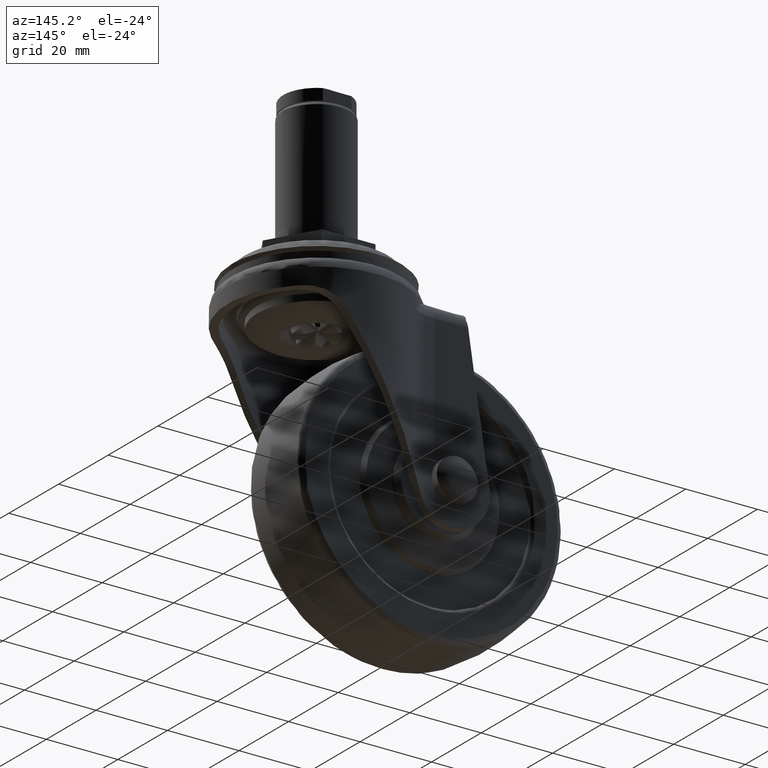
[diagram: clean part render]
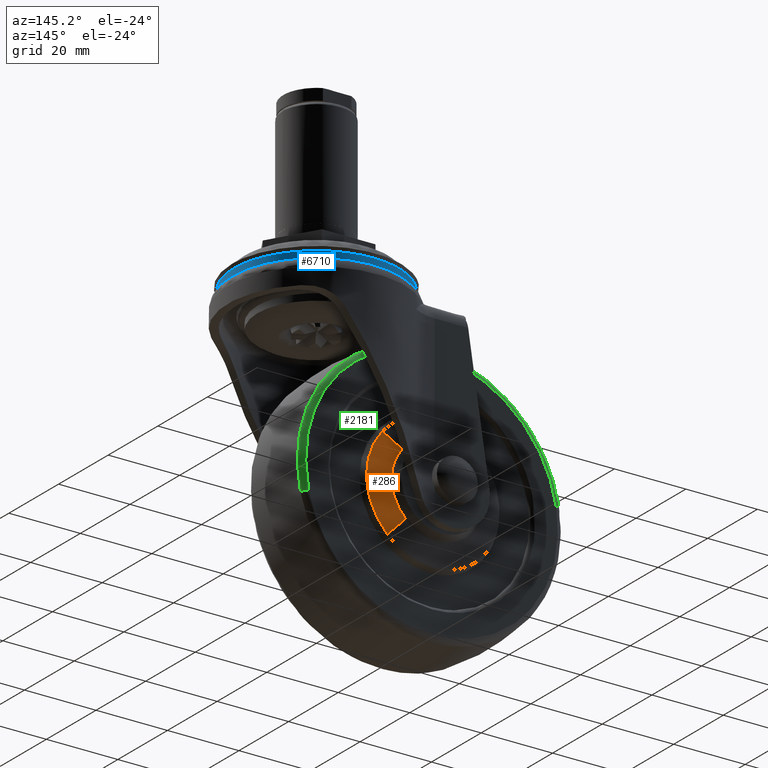
[diagram: same view with three faces highlighted in distinct colors, each labeled with its STEP entity id]
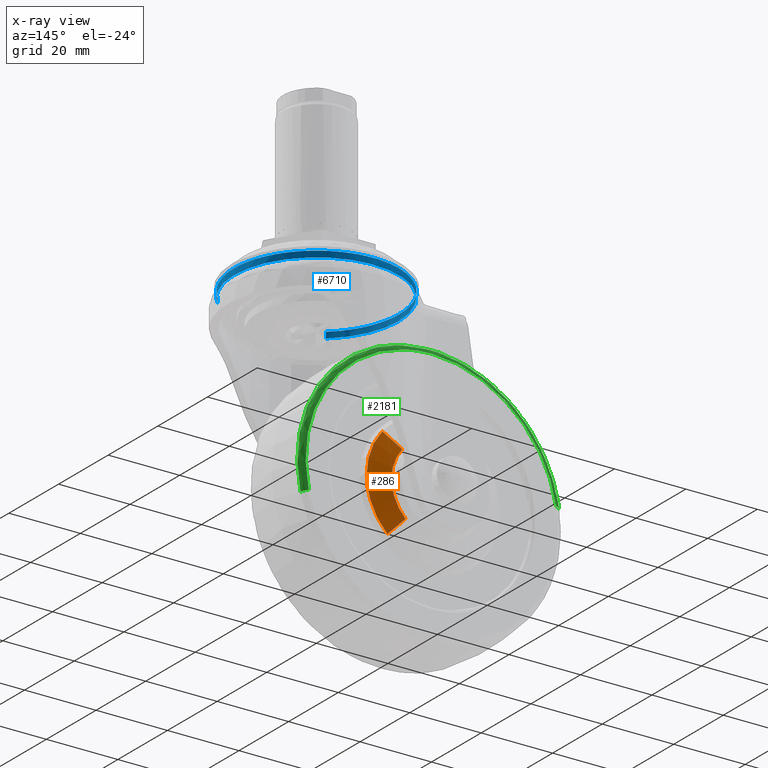
[diagram: x-ray of the same camera — body ghosted, the three highlighted faces saturated]
A machine part, auxiliary view with three faces highlighted in distinct colors.
The next image is the same camera in x-ray (body ghosted, the three faces saturated) — at least one of them is partly hidden behind the body in this view.
Their STEP definitions:

[orange] entity #286 — the highlighted face is a freeform B-spline surface patch.
#70=CARTESIAN_POINT('',(-15.360513245780989,12.469561828281330,-49.348173803471440));
#71=VERTEX_POINT('',#70);
#126=CARTESIAN_POINT('',(-16.309885233722969,12.469561063073030,-66.657796227111035));
#127=VERTEX_POINT('',#126);
#139=CARTESIAN_POINT('',(-12.201779515133881,11.010146419921080,-70.986836385914472));
#140=VERTEX_POINT('',#139);
#141=CARTESIAN_POINT('',(-16.309885233722969,12.469561063073030,-66.657796227111035));
#142=CARTESIAN_POINT('',(-12.201779515133881,11.010146419921080,-70.986836385914472));
#143=QUASI_UNIFORM_CURVE('',1,(#141,#142),.UNSPECIFIED.,.F.,.U.);
#144=EDGE_CURVE('',#127,#140,#143,.T.);
#203=CARTESIAN_POINT('',(-10.803603628256790,11.010146209847541,-45.494377231858323));
#204=VERTEX_POINT('',#203);
#216=CARTESIAN_POINT('',(-15.360513245780989,12.469561828281330,-49.348173803471440));
#217=CARTESIAN_POINT('',(-10.803603628256790,11.010146209847541,-45.494377231858323));
#218=QUASI_UNIFORM_CURVE('',1,(#216,#217),.UNSPECIFIED.,.F.,.U.);
#219=EDGE_CURVE('',#71,#204,#218,.T.);
#224=CARTESIAN_POINT('',(-16.412587517168230,12.506046367146620,-66.549570601997857));
#225=CARTESIAN_POINT('',(-7.866902248768105,12.506046367146622,-58.440018083988804));
#226=CARTESIAN_POINT('',(-15.474433538971999,12.506046367146617,-49.444516629513544));
#227=CARTESIAN_POINT('',(-12.096508686655810,10.972748812809961,-71.097768692737745));
#228=CARTESIAN_POINT('',(0.744283094084672,10.972748812809956,-58.912312284251371));
#229=CARTESIAN_POINT('',(-10.686833568285049,10.972748812809954,-45.395624328589037));
#237=(BOUNDED_SURFACE()B_SPLINE_SURFACE(2,1,((#224,#227),(#225,#228),(#226,#229)),.UNSPECIFIED.,.F.,.F.,.U.)B_SPLINE_SURFACE_WITH_KNOTS((3,3),(2,2),(0.0,29.807898895841220),(0.0,6.454893007164583),.UNSPECIFIED.)GEOMETRIC_REPRESENTATION_ITEM()RATIONAL_B_SPLINE_SURFACE(((1.0,1.0),(0.718822509939086,0.718822509939086),(0.977505800795127,0.977505800795127)))REPRESENTATION_ITEM('')SURFACE());
#238=CARTESIAN_POINT('',(-12.375525000000071,12.469561000000001,-57.500324905101913));
#239=VERTEX_POINT('',#238);
#240=CARTESIAN_POINT('',(-12.375525000000071,12.469561000000001,-57.500324905101913));
#241=CARTESIAN_POINT('',(-12.375333794860049,12.469561098486270,-56.530998280799182));
#242=CARTESIAN_POINT('',(-12.573194188350399,12.469561272000471,-54.823229175540277));
#243=CARTESIAN_POINT('',(-13.254387304722121,12.469561482165460,-52.754731765500694));
#244=CARTESIAN_POINT('',(-14.138083279805320,12.469561663074980,-50.974176499056931));
#245=CARTESIAN_POINT('',(-14.853741755116131,12.469561767410800,-49.947276247969029));
#246=CARTESIAN_POINT('',(-15.360513245780989,12.469561828281330,-49.348173803471440));
#247=B_SPLINE_CURVE_WITH_KNOTS('',3,(#240,#241,#242,#243,#244,#245,#246),.UNSPECIFIED.,.F.,.U.,(4,1,1,1,4),(0.000000020981012,2.907962576312837,5.123545373844451,6.508292559035523,8.862356812620623),.UNSPECIFIED.);
#248=EDGE_CURVE('',#239,#71,#247,.T.);
#249=ORIENTED_EDGE('',*,*,#248,.T.);
#250=ORIENTED_EDGE('',*,*,#219,.T.);
#251=CARTESIAN_POINT('',(-6.407516489852390,11.010146314222281,-57.500324165151923));
#252=VERTEX_POINT('',#251);
#253=CARTESIAN_POINT('',(-6.407516489852390,11.010146314222281,-57.500324165151923));
#254=CARTESIAN_POINT('',(-6.407361795500528,11.010146303584630,-56.276705718305053));
#255=CARTESIAN_POINT('',(-6.643239615464803,11.010146282901010,-53.897520348325003));
#256=CARTESIAN_POINT('',(-7.543278342137390,11.010146256743150,-50.888654899785941));
#257=CARTESIAN_POINT('',(-8.889686924182533,11.010146232152289,-48.060030081569337));
#258=CARTESIAN_POINT('',(-10.013331130330419,11.010146217969030,-46.428573671421603));
#259=CARTESIAN_POINT('',(-10.803603628256790,11.010146209847541,-45.494377231858323));
#260=B_SPLINE_CURVE_WITH_KNOTS('',3,(#253,#254,#255,#256,#257,#258,#259),.UNSPECIFIED.,.F.,.U.,(4,1,1,1,4),(4.363807E-009,3.670843806502665,7.137750827014534,9.381045055685899,13.051888857829040),.UNSPECIFIED.);
#261=EDGE_CURVE('',#252,#204,#260,.T.);
#262=ORIENTED_EDGE('',*,*,#261,.F.);
#263=CARTESIAN_POINT('',(-12.201779515133881,11.010146419921080,-70.986836385914472));
#264=CARTESIAN_POINT('',(-11.232480927642950,11.010146412714610,-70.067333827382740));
#265=CARTESIAN_POINT('',(-9.570329737330123,11.010146397362361,-68.108485038943670));
#266=CARTESIAN_POINT('',(-7.892524143442133,11.010146373162430,-65.020723342128051));
#267=CARTESIAN_POINT('',(-6.715488912686851,11.010146345633650,-61.508219173009223));
#268=CARTESIAN_POINT('',(-6.407078858631341,11.010146326233510,-59.032881893401679));
#269=CARTESIAN_POINT('',(-6.407516489852390,11.010146314222281,-57.500324165151923));
#270=B_SPLINE_CURVE_WITH_KNOTS('',3,(#263,#264,#265,#266,#267,#268,#269),.UNSPECIFIED.,.F.,.U.,(4,1,1,1,4),(0.000000023289124,4.008091632298649,7.662498049215182,10.491758269599019,15.089279230478370),.UNSPECIFIED.);
#271=EDGE_CURVE('',#140,#252,#270,.T.);
#272=ORIENTED_EDGE('',*,*,#271,.F.);
#273=ORIENTED_EDGE('',*,*,#144,.F.);
#274=CARTESIAN_POINT('',(-16.309885233722969,12.469561063073030,-66.657796227111035));
#275=CARTESIAN_POINT('',(-15.651729596427030,12.469561058772751,-66.033442322389078));
#276=CARTESIAN_POINT('',(-14.575208037096891,12.469561050034400,-64.764737911121699));
#277=CARTESIAN_POINT('',(-13.352004416262810,12.469561034875420,-62.563830046982041));
#278=CARTESIAN_POINT('',(-12.566135406950931,12.469561018376931,-60.168439572395542));
#279=CARTESIAN_POINT('',(-12.375377246665950,12.469561006248290,-58.407513244962367));
#280=CARTESIAN_POINT('',(-12.375525000000071,12.469561000000001,-57.500324905101913));
#281=B_SPLINE_CURVE_WITH_KNOTS('',3,(#274,#275,#276,#277,#278,#279,#280),.UNSPECIFIED.,.F.,.U.,(4,1,1,1,4),(0.000000015564956,2.721545468878960,4.962823566775104,7.524271532146420,10.245816985466501),.UNSPECIFIED.);
#282=EDGE_CURVE('',#127,#239,#281,.T.);
#283=ORIENTED_EDGE('',*,*,#282,.T.);
#284=EDGE_LOOP('',(#249,#250,#262,#272,#273,#283));
#285=FACE_OUTER_BOUND('',#284,.T.);
#286=ADVANCED_FACE('',(#285),#237,.T.);

[blue] entity #6710 — the highlighted face is a freeform B-spline surface patch.
#6512=CARTESIAN_POINT('',(-14.852066882786582,-17.561779787630691,-6.942118287006348));
#6513=CARTESIAN_POINT('',(-15.354677475257665,-17.136720014324840,-6.942118287006348));
#6514=CARTESIAN_POINT('',(-15.832155240956340,-16.683610533282611,-6.942118287006348));
#6515=CARTESIAN_POINT('',(-32.515765774238943,-0.851455292326273,-6.942118287006348));
#6516=CARTESIAN_POINT('',(-16.683610533282611,15.832155240956340,-6.942118287006348));
#6517=CARTESIAN_POINT('',(-0.851455292326273,32.515765774238943,-6.942118287006348));
#6518=CARTESIAN_POINT('',(15.832155240956340,16.683610533282611,-6.942118287006348));
#6519=CARTESIAN_POINT('',(32.515765774238943,0.851455292326273,-6.942118287006348));
#6520=CARTESIAN_POINT('',(16.683610533282611,-15.832155240956340,-6.942118287006348));
#6521=CARTESIAN_POINT('',(-14.852066882786582,-17.561779787630691,-8.744222275560304));
#6522=CARTESIAN_POINT('',(-15.354677475257665,-17.136720014324840,-8.744222275560304));
#6523=CARTESIAN_POINT('',(-15.832155240956340,-16.683610533282611,-8.744222275560304));
#6524=CARTESIAN_POINT('',(-32.515765774238943,-0.851455292326273,-8.744222275560304));
#6525=CARTESIAN_POINT('',(-16.683610533282611,15.832155240956340,-8.744222275560304));
#6526=CARTESIAN_POINT('',(-0.851455292326273,32.515765774238943,-8.744222275560304));
#6527=CARTESIAN_POINT('',(15.832155240956340,16.683610533282611,-8.744222275560304));
#6528=CARTESIAN_POINT('',(32.515765774238943,0.851455292326273,-8.744222275560304));
#6529=CARTESIAN_POINT('',(16.683610533282611,-15.832155240956340,-8.744222275560304));
#6537=(BOUNDED_SURFACE()B_SPLINE_SURFACE(2,1,((#6512,#6521),(#6513,#6522),(#6514,#6523),(#6515,#6524),(#6516,#6525),(#6517,#6526),(#6518,#6527),(#6519,#6528),(#6520,#6529)),.UNSPECIFIED.,.F.,.F.,.U.)B_SPLINE_SURFACE_WITH_KNOTS((3,2,2,2,3),(2,2),(0.0,1.524305909532992,39.631953647857742,77.739601386182471,115.847249124507200),(0.0,1.0),.UNSPECIFIED.)GEOMETRIC_REPRESENTATION_ITEM()RATIONAL_B_SPLINE_SURFACE(((0.977505800795127,0.977505800795127),(0.988284271247462,0.988284271247462),(1.0,1.0),(0.707106781186548,0.707106781186548),(1.0,1.0),(0.707106781186548,0.707106781186548),(1.0,1.0),(0.707106781186548,0.707106781186548),(1.0,1.0)))REPRESENTATION_ITEM('')SURFACE());
#6538=CARTESIAN_POINT('',(-14.852065020905229,-17.561782391905190,-8.699832059837007));
#6539=VERTEX_POINT('',#6538);
#6540=CARTESIAN_POINT('',(-23.0,0.0,-8.699999999999900));
#6541=VERTEX_POINT('',#6540);
#6542=CARTESIAN_POINT('',(-14.852065020905229,-17.561782391905190,-8.699832059837007));
#6543=CARTESIAN_POINT('',(-15.339588316947440,-17.149483125187469,-8.699831124717527));
#6544=CARTESIAN_POINT('',(-15.810512324617610,-16.716399651889709,-8.699834902346849));
#6545=CARTESIAN_POINT('',(-16.263456719991321,-16.263455214589900,-8.699846982256094));
#6546=CARTESIAN_POINT('',(-17.328753471015752,-15.198158364957941,-8.699875393443435));
#6547=CARTESIAN_POINT('',(-18.286803500784028,-14.030770907776381,-8.700062562710951));
#6548=CARTESIAN_POINT('',(-19.123801759182470,-12.778114347410170,-8.700002598804618));
#6549=CARTESIAN_POINT('',(-19.960799656783699,-11.525458327015221,-8.699942634924133));
#6550=CARTESIAN_POINT('',(-20.672695618051311,-10.193594480436101,-8.699772171700497));
#6551=CARTESIAN_POINT('',(-21.249229757583059,-8.801717713574240,-8.699975741903932));
#6552=CARTESIAN_POINT('',(-21.537323252417771,-8.106198377164855,-8.700077465717547));
#6553=CARTESIAN_POINT('',(-21.791094619251680,-7.396954798939419,-8.700335687771714));
#6554=CARTESIAN_POINT('',(-22.009628053484761,-6.676546483568911,-8.700206457404326));
#6555=CARTESIAN_POINT('',(-22.228161498943560,-5.956138131192160,-8.700077227030299));
#6556=CARTESIAN_POINT('',(-22.411192829324470,-5.225435966705355,-8.699771531564903));
#6557=CARTESIAN_POINT('',(-22.558061620330040,-4.487076546415613,-8.699722985440012));
#6558=CARTESIAN_POINT('',(-22.851975429853979,-3.009471750124972,-8.699625834939850));
#6559=CARTESIAN_POINT('',(-23.000000000762650,-1.506552368562902,-8.701109804357145));
#6560=CARTESIAN_POINT('',(-23.0,0.0,-8.699999999999900));
#6561=B_SPLINE_CURVE_WITH_KNOTS('',3,(#6542,#6543,#6544,#6545,#6546,#6547,#6548,#6549,#6550,#6551,#6552,#6553,#6554,#6555,#6556,#6557,#6558,#6559,#6560),.UNSPECIFIED.,.F.,.U.,(4,3,3,3,3,3,4),(52.401882115212111,54.323562525307672,58.843234075041757,63.362903676522222,65.621377757599646,67.879851954691333,72.399510286688766),.UNSPECIFIED.);
#6562=EDGE_CURVE('',#6539,#6541,#6561,.T.);
#6563=ORIENTED_EDGE('',*,*,#6562,.F.);
#6564=CARTESIAN_POINT('',(-14.852067146375090,-17.561780097857000,-6.984999999999899));
#6565=VERTEX_POINT('',#6564);
#6566=CARTESIAN_POINT('',(-14.852067146375090,-17.561780097857000,-6.984999999999899));
#6567=CARTESIAN_POINT('',(-14.852065020905229,-17.561782391905190,-8.699832059837007));
#6568=QUASI_UNIFORM_CURVE('',1,(#6566,#6567),.UNSPECIFIED.,.F.,.U.);
#6569=EDGE_CURVE('',#6565,#6539,#6568,.T.);
#6570=ORIENTED_EDGE('',*,*,#6569,.F.);
#6571=CARTESIAN_POINT('',(-23.0,0.0,-6.984999999999900));
#6572=VERTEX_POINT('',#6571);
#6573=CARTESIAN_POINT('',(-14.852067146375090,-17.561780097857000,-6.984999999999899));
#6574=CARTESIAN_POINT('',(-15.924964985432640,-16.654603918880309,-6.984999999999907));
#6575=CARTESIAN_POINT('',(-17.940370005962968,-14.605526436728351,-6.984999999999849));
#6576=CARTESIAN_POINT('',(-19.977735092749342,-11.566123806395099,-6.984999999999980));
#6577=CARTESIAN_POINT('',(-21.411795179552328,-8.555478823861003,-6.984999999999799));
#6578=CARTESIAN_POINT('',(-22.618685538963209,-4.943356722652085,-6.984999999999898));
#6579=CARTESIAN_POINT('',(-23.000561000735502,-1.925454526192254,-6.984999999999984));
#6580=CARTESIAN_POINT('',(-23.0,0.0,-6.984999999999900));
#6581=B_SPLINE_CURVE_WITH_KNOTS('',3,(#6573,#6574,#6575,#6576,#6577,#6578,#6579,#6580),.UNSPECIFIED.,.F.,.U.,(4,1,1,1,1,4),(0.000000025432882,4.215049985249431,8.586237343825545,10.927904149099041,14.206286669874419,19.982475857571231),.UNSPECIFIED.);
#6582=EDGE_CURVE('',#6565,#6572,#6581,.T.);
#6583=ORIENTED_EDGE('',*,*,#6582,.T.);
#6584=CARTESIAN_POINT('',(0.000001651259953,22.999999999999940,-6.984999999999899));
#6585=VERTEX_POINT('',#6584);
#6586=CARTESIAN_POINT('',(-23.0,0.0,-6.984999999999900));
#6587=CARTESIAN_POINT('',(-23.000073920273518,1.176045447879836,-6.984999999999866));
#6588=CARTESIAN_POINT('',(-22.822815749788241,3.481085543243983,-6.984999999999931));
#6589=CARTESIAN_POINT('',(-22.079657616894970,6.698246427778162,-6.984999999999918));
#6590=CARTESIAN_POINT('',(-20.867852871568140,9.868642880403518,-6.984999999999920));
#6591=CARTESIAN_POINT('',(-19.155515151819621,12.913232122035680,-6.984999999999840));
#6592=CARTESIAN_POINT('',(-16.737450692524831,15.934484315427831,-6.985000000000007));
#6593=CARTESIAN_POINT('',(-14.161693125037701,18.226165596765910,-6.984999999999864));
#6594=CARTESIAN_POINT('',(-11.093657296268001,20.249071335945239,-6.984999999999919));
#6595=CARTESIAN_POINT('',(-8.004728482646915,21.675392843671140,-6.984999999999910));
#6596=CARTESIAN_POINT('',(-4.092587517285576,22.745038262984959,-6.984999999999869));
#6597=CARTESIAN_POINT('',(-1.505356279534879,23.000188489158710,-6.984999999999949));
#6598=CARTESIAN_POINT('',(0.000001651259953,22.999999999999940,-6.984999999999899));
#6599=B_SPLINE_CURVE_WITH_KNOTS('',3,(#6586,#6587,#6588,#6589,#6590,#6591,#6592,#6593,#6594,#6595,#6596,#6597,#6598),.UNSPECIFIED.,.F.,.U.,(4,1,1,1,1,1,1,1,1,1,4),(0.000000080203137,3.528130168540045,6.915193676243810,9.878853623429688,13.689295227305839,17.358582970423551,21.451220182611980,23.991492110821259,28.366418569334648,31.612333140738631,36.128373121804309),.UNSPECIFIED.);
#6600=EDGE_CURVE('',#6572,#6585,#6599,.T.);
#6601=ORIENTED_EDGE('',*,*,#6600,.T.);
#6602=CARTESIAN_POINT('',(23.0,0.0,-6.984999999999900));
#6603=VERTEX_POINT('',#6602);
#6604=CARTESIAN_POINT('',(0.000001651259953,22.999999999999940,-6.984999999999899));
#6605=CARTESIAN_POINT('',(1.458316766606300,23.000155424452469,-6.984999999999874));
#6606=CARTESIAN_POINT('',(4.327821694768486,22.726194218912539,-6.984999999999982));
#6607=CARTESIAN_POINT('',(8.320623768475517,21.568386942040831,-6.984999999999777));
#6608=CARTESIAN_POINT('',(11.454986856084250,20.026508079490529,-6.984999999999983));
#6609=CARTESIAN_POINT('',(14.151978412846280,18.212445688771599,-6.984999999999825));
#6610=CARTESIAN_POINT('',(16.420157623453470,16.219197368482831,-6.984999999999914));
#6611=CARTESIAN_POINT('',(18.805249136314611,13.419824191347560,-6.984999999999875));
#6612=CARTESIAN_POINT('',(20.807595962648829,10.102325568391411,-6.984999999999946));
#6613=CARTESIAN_POINT('',(22.134806200515740,6.564817429215120,-6.984999999999820));
#6614=CARTESIAN_POINT('',(22.847260125115561,3.198833412113322,-6.985000000000079));
#6615=CARTESIAN_POINT('',(23.000064796592060,1.129013193711120,-6.984999999999603));
#6616=CARTESIAN_POINT('',(23.0,0.0,-6.984999999999900));
#6617=B_SPLINE_CURVE_WITH_KNOTS('',3,(#6604,#6605,#6606,#6607,#6608,#6609,#6610,#6611,#6612,#6613,#6614,#6615,#6616),.UNSPECIFIED.,.F.,.U.,(4,1,1,1,1,1,1,1,1,1,4),(0.000000080387814,4.374919557151046,8.608711411804617,12.419128270030550,14.818313021098930,18.346397982325520,21.451219076346540,25.826139820350601,29.918822506991638,32.741337851114928,36.128371260446379),.UNSPECIFIED.);
#6618=EDGE_CURVE('',#6585,#6603,#6617,.T.);
#6619=ORIENTED_EDGE('',*,*,#6618,.T.);
#6620=CARTESIAN_POINT('',(16.683610249999969,-15.832154940582910,-6.984999999999293));
#6621=VERTEX_POINT('',#6620);
#6622=CARTESIAN_POINT('',(23.0,0.0,-6.984999999999900));
#6623=CARTESIAN_POINT('',(23.000129578023522,-1.409701078932960,-6.984999999999841));
#6624=CARTESIAN_POINT('',(22.773529854101842,-3.865251858220318,-6.984999999999758));
#6625=CARTESIAN_POINT('',(21.989029795737380,-6.910849877469286,-6.984999999999628));
#6626=CARTESIAN_POINT('',(20.982229128993339,-9.547340666184681,-6.984999999999555));
#6627=CARTESIAN_POINT('',(19.423115290064850,-12.539059296420200,-6.984999999999345));
#6628=CARTESIAN_POINT('',(17.779383547543731,-14.677814095159169,-6.984999999999408));
#6629=CARTESIAN_POINT('',(16.683610249999969,-15.832154940582910,-6.984999999999293));
#6630=B_SPLINE_CURVE_WITH_KNOTS('',3,(#6622,#6623,#6624,#6625,#6626,#6627,#6628,#6629),.UNSPECIFIED.,.F.,.U.,(4,1,1,1,1,4),(0.000000019410319,4.229088192600386,7.366803173253613,9.413131801311804,12.687265162526730,17.462044583931579),.UNSPECIFIED.);
#6631=EDGE_CURVE('',#6603,#6621,#6630,.T.);
#6632=ORIENTED_EDGE('',*,*,#6631,.T.);
#6633=CARTESIAN_POINT('',(16.683612138981928,-15.832153562369820,-8.699997563917227));
#6634=VERTEX_POINT('',#6633);
#6635=CARTESIAN_POINT('',(16.683610249999969,-15.832154940582910,-6.984999999999293));
#6636=CARTESIAN_POINT('',(16.683612138981928,-15.832153562369820,-8.699997563917227));
#6637=QUASI_UNIFORM_CURVE('',1,(#6635,#6636),.UNSPECIFIED.,.F.,.U.);
#6638=EDGE_CURVE('',#6621,#6634,#6637,.T.);
#6639=ORIENTED_EDGE('',*,*,#6638,.T.);
#6640=CARTESIAN_POINT('',(23.0,0.0,-8.699999999999900));
#6641=VERTEX_POINT('',#6640);
#6642=CARTESIAN_POINT('',(23.0,0.0,-8.699999999999900));
#6643=CARTESIAN_POINT('',(22.999999999879279,-1.506564316604162,-8.699905676331198));
#6644=CARTESIAN_POINT('',(22.851977572428812,-3.009461221136846,-8.699812214939971));
#6645=CARTESIAN_POINT('',(22.558061479446302,-4.487077254686076,-8.700298677735585));
#6646=CARTESIAN_POINT('',(22.264146731891120,-5.964686524315109,-8.700785138304372));
#6647=CARTESIAN_POINT('',(21.825763802837201,-7.409841408587831,-8.699704324779154));
#6648=CARTESIAN_POINT('',(21.249229235191009,-8.801718975270648,-8.699733343690355));
#6649=CARTESIAN_POINT('',(20.672693457668998,-10.193599462852060,-8.699762362662453));
#6650=CARTESIAN_POINT('',(19.960801272923302,-11.525456057957189,-8.699961840223054));
#6651=CARTESIAN_POINT('',(19.123801055198310,-12.778115401241511,-8.699984768109701));
#6652=CARTESIAN_POINT('',(18.398346228561820,-13.863835270212290,-8.700004640441488));
#6653=CARTESIAN_POINT('',(17.581953369969799,-14.885499305970709,-8.699993571230912));
#6654=CARTESIAN_POINT('',(16.683612138981928,-15.832153562369820,-8.699997563917227));
#6655=B_SPLINE_CURVE_WITH_KNOTS('',3,(#6642,#6643,#6644,#6645,#6646,#6647,#6648,#6649,#6650,#6651,#6652,#6653,#6654),.UNSPECIFIED.,.F.,.U.,(4,3,3,3,4),(0.0,4.519692958670674,9.039365228040612,13.559046982084130,17.476399539343600),.UNSPECIFIED.);
#6656=EDGE_CURVE('',#6641,#6634,#6655,.T.);
#6657=ORIENTED_EDGE('',*,*,#6656,.F.);
#6658=CARTESIAN_POINT('',(14.452621082446189,17.891946340385442,-8.699561568340629));
#6659=VERTEX_POINT('',#6658);
#6660=CARTESIAN_POINT('',(14.452621082446189,17.891946340385442,-8.699561568340629));
#6661=CARTESIAN_POINT('',(15.117277058375389,17.355055563522019,-8.700213856836243));
#6662=CARTESIAN_POINT('',(15.751509151009360,16.781536853447751,-8.700026451971970));
#6663=CARTESIAN_POINT('',(16.352349214876060,16.174074166849319,-8.700014495458639));
#6664=CARTESIAN_POINT('',(16.953192238051770,15.566608488323549,-8.700002538886418));
#6665=CARTESIAN_POINT('',(17.519718860127249,14.926134058867550,-8.700066040257910));
#6666=CARTESIAN_POINT('',(18.049294482931391,14.255629367671659,-8.699976348685336));
#6667=CARTESIAN_POINT('',(19.109267068888911,12.913580072312749,-8.699796826433886));
#6668=CARTESIAN_POINT('',(20.016256882742969,11.457490914079759,-8.699256190750482));
#6669=CARTESIAN_POINT('',(20.753436958203910,9.914376148898942,-8.700020525364350));
#6670=CARTESIAN_POINT('',(21.490617832645810,8.371259711237583,-8.700784860806630));
#6671=CARTESIAN_POINT('',(22.053394257364300,6.750736717088589,-8.699562617405208));
#6672=CARTESIAN_POINT('',(22.431329097926032,5.082860897224792,-8.699830638904945));
#6673=CARTESIAN_POINT('',(22.809264206526471,3.414983894471161,-8.700098660594769));
#6674=CARTESIAN_POINT('',(23.000000000137039,1.710160431947482,-8.700107070507434));
#6675=CARTESIAN_POINT('',(23.0,0.0,-8.699999999999900));
#6676=B_SPLINE_CURVE_WITH_KNOTS('',3,(#6660,#6661,#6662,#6663,#6664,#6665,#6666,#6667,#6668,#6669,#6670,#6671,#6672,#6673,#6674,#6675),.UNSPECIFIED.,.F.,.U.,(4,3,3,3,3,4),(0.0,2.563235705684740,5.126484036037850,10.256956142720361,15.387433809983950,20.517915115881671),.UNSPECIFIED.);
#6677=EDGE_CURVE('',#6659,#6641,#6676,.T.);
#6678=ORIENTED_EDGE('',*,*,#6677,.F.);
#6679=CARTESIAN_POINT('',(-17.884051274360381,14.462389498834369,-8.699999999999900));
#6680=VERTEX_POINT('',#6679);
#6681=CARTESIAN_POINT('',(-17.884051274360381,14.462389498834369,-8.699999999999900));
#6682=CARTESIAN_POINT('',(-17.115306147860242,15.413157712334190,-8.699988341058967));
#6683=CARTESIAN_POINT('',(-15.685569740631861,16.917957085443600,-8.699967032039725));
#6684=CARTESIAN_POINT('',(-13.224214450595740,18.892570663024550,-8.699931223495417));
#6685=CARTESIAN_POINT('',(-10.411548743751640,20.618552077196131,-8.699891058294336));
#6686=CARTESIAN_POINT('',(-7.399636824333403,21.859725161990990,-8.699848911078432));
#6687=CARTESIAN_POINT('',(-4.251262806597719,22.662890363237398,-8.699805557077763));
#6688=CARTESIAN_POINT('',(-1.445543833306487,23.021540094975439,-8.699767429325579));
#6689=CARTESIAN_POINT('',(1.852415559609431,23.005915761438420,-8.699723234050961));
#6690=CARTESIAN_POINT('',(4.932310976295558,22.543977598229130,-8.699682597123536));
#6691=CARTESIAN_POINT('',(7.776063208588254,21.695342116360209,-8.699645676165693));
#6692=CARTESIAN_POINT('',(10.941798091531661,20.355596772883100,-8.699605136561399));
#6693=CARTESIAN_POINT('',(13.099311911517759,18.985626840004901,-8.699578157689894));
#6694=CARTESIAN_POINT('',(14.452621082446189,17.891946340385442,-8.699561568340629));
#6695=B_SPLINE_CURVE_WITH_KNOTS('',3,(#6681,#6682,#6683,#6684,#6685,#6686,#6687,#6688,#6689,#6690,#6691,#6692,#6693,#6694),.UNSPECIFIED.,.F.,.U.,(4,1,1,1,1,1,1,1,1,1,1,4),(0.000000080103320,3.668006902385415,6.207403913242548,9.452186725266685,13.543436913544721,15.941787144006680,19.186517182857191,22.008041154218141,25.817161910751580,28.497641582171951,30.895950067187439,36.115811995416493),.UNSPECIFIED.);
#6696=EDGE_CURVE('',#6680,#6659,#6695,.T.);
#6697=ORIENTED_EDGE('',*,*,#6696,.F.);
#6698=CARTESIAN_POINT('',(-23.0,0.0,-8.699999999999900));
#6699=CARTESIAN_POINT('',(-23.000055051063239,1.140432598213227,-8.699999999999918));
#6700=CARTESIAN_POINT('',(-22.830013216584490,3.421279857548039,-8.699999999999873));
#6701=CARTESIAN_POINT('',(-22.007730031604620,7.045855124772650,-8.699999999999927));
#6702=CARTESIAN_POINT('',(-20.450686458389072,10.828522482666891,-8.699999999999863));
#6703=CARTESIAN_POINT('',(-18.831813899992120,13.290709312280200,-8.699999999999930));
#6704=CARTESIAN_POINT('',(-17.884051274360381,14.462389498834369,-8.699999999999900));
#6705=B_SPLINE_CURVE_WITH_KNOTS('',3,(#6698,#6699,#6700,#6701,#6702,#6703,#6704),.UNSPECIFIED.,.F.,.U.,(4,1,1,1,4),(0.000000014381303,3.421294757755758,6.842606471587052,11.119209306081849,15.640211231989481),.UNSPECIFIED.);
#6706=EDGE_CURVE('',#6541,#6680,#6705,.T.);
#6707=ORIENTED_EDGE('',*,*,#6706,.F.);
#6708=EDGE_LOOP('',(#6563,#6570,#6583,#6601,#6619,#6632,#6639,#6657,#6678,#6697,#6707));
#6709=FACE_OUTER_BOUND('',#6708,.T.);
#6710=ADVANCED_FACE('',(#6709),#6537,.T.);

[green] entity #2181 — the highlighted face is a freeform B-spline surface patch.
#2047=CARTESIAN_POINT('',(9.354299218000895,10.496915297487275,-65.203765830335357));
#2048=CARTESIAN_POINT('',(9.574768143575239,10.496915297487277,-64.220561495094543));
#2049=CARTESIAN_POINT('',(9.738644543245895,10.496915297487275,-63.226357372385756));
#2050=CARTESIAN_POINT('',(15.464675915631549,10.496915297487275,-28.487712829139848));
#2051=CARTESIAN_POINT('',(-19.273968627614344,10.496915297487275,-22.761681456754204));
#2052=CARTESIAN_POINT('',(-54.012613170860227,10.496915297487275,-17.035650084368548));
#2053=CARTESIAN_POINT('',(-59.738644543245890,10.496915297487275,-51.774294627614438));
#2054=CARTESIAN_POINT('',(10.777360686663913,10.590590177255383,-65.522866165613607));
#2055=CARTESIAN_POINT('',(11.006962117926454,10.590590177255384,-64.498934461829364));
#2056=CARTESIAN_POINT('',(11.177626785595669,10.590590177255383,-63.463547325313925));
#2057=CARTESIAN_POINT('',(17.140848110909481,10.590590177255384,-27.285920539718248));
#2058=CARTESIAN_POINT('',(-19.036778674686186,10.590590177255383,-21.322699214404423));
#2059=CARTESIAN_POINT('',(-55.214405460281846,10.590590177255384,-15.359477889090606));
#2060=CARTESIAN_POINT('',(-61.177626785595670,10.590590177255383,-51.537104674686269));
#2061=CARTESIAN_POINT('',(10.905821192452999,9.135127329685416,-65.551671520385682));
#2062=CARTESIAN_POINT('',(11.136247019797970,9.135127329685410,-64.524063335663840));
#2063=CARTESIAN_POINT('',(11.307524467982809,9.135127329685412,-63.484958586873752));
#2064=CARTESIAN_POINT('',(17.292157054856439,9.135127329685412,-27.177434118890929));
#2065=CARTESIAN_POINT('',(-19.015367413126370,9.135127329685412,-21.192801532017285));
#2066=CARTESIAN_POINT('',(-55.322891881109172,9.135127329685412,-15.208168945143647));
#2067=CARTESIAN_POINT('',(-61.307524467982816,9.135127329685412,-51.515693413126463));
#2075=(BOUNDED_SURFACE()B_SPLINE_SURFACE(2,2,((#2047,#2054,#2061),(#2048,#2055,#2062),(#2049,#2056,#2063),(#2050,#2057,#2064),(#2051,#2058,#2065),(#2052,#2059,#2066),(#2053,#2060,#2067)),.UNSPECIFIED.,.F.,.F.,.U.)B_SPLINE_SURFACE_WITH_KNOTS((3,2,2,3),(3,3),(0.0,2.438717980608307,63.406725639439010,124.374733298269700),(0.0,2.439599836390568),.UNSPECIFIED.)GEOMETRIC_REPRESENTATION_ITEM()RATIONAL_B_SPLINE_SURFACE(((0.897408709589390,0.642315054769910,0.896112873211130),(0.907303980416652,0.649397537205681,0.905993855507676),(0.918059708684765,0.657095887040936,0.916734052765431),(0.649166245545144,0.464636957616435,0.648228865255062),(0.918059708684765,0.657095887040936,0.916734052765431),(0.649166245545144,0.464636957616435,0.648228865255062),(0.918059708684765,0.657095887040936,0.916734052765431)))REPRESENTATION_ITEM('')SURFACE());
#2076=CARTESIAN_POINT('',(9.448117864550852,10.500000000000000,-65.224805261356721));
#2077=VERTEX_POINT('',#2076);
#2078=CARTESIAN_POINT('',(-25.0,10.500000000000000,-22.196779396006999));
#2079=VERTEX_POINT('',#2078);
#2080=CARTESIAN_POINT('',(9.448117864550852,10.500000000000000,-65.224805261356721));
#2081=CARTESIAN_POINT('',(9.826573072799704,10.500000000000030,-63.537453906905363));
#2082=CARTESIAN_POINT('',(10.310560360282480,10.499999999999950,-60.270356563414417));
#2083=CARTESIAN_POINT('',(10.342466323458931,10.500000000000091,-55.813929976740653));
#2084=CARTESIAN_POINT('',(9.879047689341199,10.499999999999920,-51.551875026441770));
#2085=CARTESIAN_POINT('',(8.817089154423339,10.500000000000050,-46.884456255801346));
#2086=CARTESIAN_POINT('',(6.926963099804207,10.500000000000130,-42.120684143011800));
#2087=CARTESIAN_POINT('',(4.515169789138527,10.499999999999799,-37.987288011033627));
#2088=CARTESIAN_POINT('',(1.645270213464404,10.500000000000290,-34.161357041546097));
#2089=CARTESIAN_POINT('',(-1.738666693124380,10.499999999999471,-30.765072996578031));
#2090=CARTESIAN_POINT('',(-6.249790143979513,10.500000000000689,-27.428867109157679));
#2091=CARTESIAN_POINT('',(-10.634409236492580,10.499999999999710,-25.110745197771958));
#2092=CARTESIAN_POINT('',(-15.612856877988831,10.499999999999931,-23.353237726168992));
#2093=CARTESIAN_POINT('',(-20.223907182817960,10.500000000000099,-22.404425509650949));
#2094=CARTESIAN_POINT('',(-23.517772130278619,10.499999999999980,-22.196757275963041));
#2095=CARTESIAN_POINT('',(-25.0,10.500000000000000,-22.196779396006999));
#2096=B_SPLINE_CURVE_WITH_KNOTS('',3,(#2080,#2081,#2082,#2083,#2084,#2085,#2086,#2087,#2088,#2089,#2090,#2091,#2092,#2093,#2094,#2095),.UNSPECIFIED.,.F.,.U.,(4,1,1,1,1,1,1,1,1,1,1,1,1,4),(0.000000044287724,5.187812863021001,9.881586098291393,13.340162301078079,18.033936415360301,24.209974829763670,28.656705675961259,32.362215591745382,38.538237490728697,42.984985268148883,49.161004584203383,53.360707380546252,58.795590756422072,63.242290447881352),.UNSPECIFIED.);
#2097=EDGE_CURVE('',#2077,#2079,#2096,.T.);
#2098=ORIENTED_EDGE('',*,*,#2097,.T.);
#2099=CARTESIAN_POINT('',(-59.833513229339282,10.500000000000000,-51.758657256339752));
#2100=VERTEX_POINT('',#2099);
#2101=CARTESIAN_POINT('',(-25.0,10.500000000000000,-22.196779396006999));
#2102=CARTESIAN_POINT('',(-27.393818497486830,10.500000000000000,-22.196462420529869));
#2103=CARTESIAN_POINT('',(-31.146101991055261,10.500000000000000,-22.579938769150299));
#2104=CARTESIAN_POINT('',(-36.217326593564721,10.500000000000020,-23.935350151039540));
#2105=CARTESIAN_POINT('',(-39.766271931918041,10.499999999999950,-25.361462436808772));
#2106=CARTESIAN_POINT('',(-43.028787789729833,10.500000000000080,-27.087302246261292));
#2107=CARTESIAN_POINT('',(-46.605466424812803,10.499999999999931,-29.430450692115301));
#2108=CARTESIAN_POINT('',(-50.169216165873571,10.499999999999980,-32.557472438383122));
#2109=CARTESIAN_POINT('',(-53.308737360504082,10.500000000000121,-36.268883224999229));
#2110=CARTESIAN_POINT('',(-55.738288453921363,10.499999999999851,-39.945387681507157));
#2111=CARTESIAN_POINT('',(-57.456947209712510,10.500000000000060,-43.436249264808282));
#2112=CARTESIAN_POINT('',(-58.923339698722941,10.500000000000000,-47.449951693102108));
#2113=CARTESIAN_POINT('',(-59.549511743184823,10.500000000000000,-50.035079250678088));
#2114=CARTESIAN_POINT('',(-59.833513229339282,10.500000000000000,-51.758657256339752));
#2115=B_SPLINE_CURVE_WITH_KNOTS('',3,(#2101,#2102,#2103,#2104,#2105,#2106,#2107,#2108,#2109,#2110,#2111,#2112,#2113,#2114),.UNSPECIFIED.,.F.,.U.,(4,1,1,1,1,1,1,1,1,1,1,4),(0.000000054321248,7.181377760139064,11.257310217095840,15.721427996099299,18.632800341454850,22.320539802955579,28.531459487743991,32.801484530266748,36.877408819064932,41.729701072397397,44.447012753288817,49.687457052140822),.UNSPECIFIED.);
#2116=EDGE_CURVE('',#2079,#2100,#2115,.T.);
#2117=ORIENTED_EDGE('',*,*,#2116,.T.);
#2118=CARTESIAN_POINT('',(-61.295925853298350,9.230744510506929,-51.517605232987627));
#2119=VERTEX_POINT('',#2118);
#2120=CARTESIAN_POINT('',(-59.833513229339282,10.500000000000000,-51.758657256339752));
#2121=CARTESIAN_POINT('',(-60.008217688595209,10.500135909219120,-51.729860415632807));
#2122=CARTESIAN_POINT('',(-60.346607461263332,10.438566332578571,-51.674083039242277));
#2123=CARTESIAN_POINT('',(-60.740421790180847,10.210016756111530,-51.609169936574737));
#2124=CARTESIAN_POINT('',(-61.016840969730033,9.923355690446682,-51.563607281113832));
#2125=CARTESIAN_POINT('',(-61.203978617540017,9.608171972169075,-51.532761056235557));
#2126=CARTESIAN_POINT('',(-61.275814923186587,9.361957360957392,-51.520920152679409));
#2127=CARTESIAN_POINT('',(-61.295925853298350,9.230744510506929,-51.517605232987627));
#2128=B_SPLINE_CURVE_WITH_KNOTS('',3,(#2120,#2121,#2122,#2123,#2124,#2125,#2126,#2127),.UNSPECIFIED.,.F.,.U.,(4,1,1,1,1,4),(0.000000222650492,0.531145818152272,1.029128636263193,1.361035940651829,1.726221465757068,2.124573406588514),.UNSPECIFIED.);
#2129=EDGE_CURVE('',#2100,#2119,#2128,.T.);
#2130=ORIENTED_EDGE('',*,*,#2129,.T.);
#2131=CARTESIAN_POINT('',(-25.0,9.230738802576987,-20.714632437744690));
#2132=VERTEX_POINT('',#2131);
#2133=CARTESIAN_POINT('',(-25.0,9.230738802576987,-20.714632437744690));
#2134=CARTESIAN_POINT('',(-27.359480600352889,9.230739013571851,-20.714344669184630));
#2135=CARTESIAN_POINT('',(-31.808653657346628,9.230739445831958,-21.144169755019760));
#2136=CARTESIAN_POINT('',(-37.729802218846899,9.230740110253784,-22.831683835724629));
#2137=CARTESIAN_POINT('',(-42.394384060265587,9.230740699126764,-24.980029355760280));
#2138=CARTESIAN_POINT('',(-46.353007559151109,9.230741249441731,-27.435915437763480));
#2139=CARTESIAN_POINT('',(-50.410488908621389,9.230741872517854,-30.691572899732449));
#2140=CARTESIAN_POINT('',(-54.007902481928959,9.230742510472153,-34.648211799236712));
#2141=CARTESIAN_POINT('',(-57.073717024038942,9.230743153263102,-39.260241697086322));
#2142=CARTESIAN_POINT('',(-59.671953583033748,9.230743813322567,-44.611555747249653));
#2143=CARTESIAN_POINT('',(-60.868816592063872,9.230744264972186,-48.923371009326047));
#2144=CARTESIAN_POINT('',(-61.295925853298350,9.230744510506929,-51.517605232987627));
#2145=B_SPLINE_CURVE_WITH_KNOTS('',3,(#2133,#2134,#2135,#2136,#2137,#2138,#2139,#2140,#2141,#2142,#2143,#2144),.UNSPECIFIED.,.F.,.U.,(4,1,1,1,1,1,1,1,1,4),(0.000000052561617,7.078386462254322,13.347851998395370,18.403857899703102,22.448660258321770,27.302413689402648,33.976343986961751,38.425630100355903,43.886130910012660,51.773481340359943),.UNSPECIFIED.);
#2146=EDGE_CURVE('',#2132,#2119,#2145,.T.);
#2147=ORIENTED_EDGE('',*,*,#2146,.F.);
#2148=CARTESIAN_POINT('',(10.894347438131330,9.230757517157327,-65.549100782697806));
#2149=VERTEX_POINT('',#2148);
#2150=CARTESIAN_POINT('',(10.894347438131330,9.230757517157327,-65.549100782697806));
#2151=CARTESIAN_POINT('',(11.269890144337669,9.230756821413303,-63.874631042021349));
#2152=CARTESIAN_POINT('',(11.798935733296609,9.230755372232428,-60.387977126985241));
#2153=CARTESIAN_POINT('',(11.837217125412581,9.230753153756846,-55.053904648306471));
#2154=CARTESIAN_POINT('',(11.034082735123629,9.230750778103399,-49.345705699720909));
#2155=CARTESIAN_POINT('',(9.426692383933128,9.230748619474015,-44.162911242943807));
#2156=CARTESIAN_POINT('',(7.082430036730425,9.230746584770618,-39.281380990788293));
#2157=CARTESIAN_POINT('',(4.675508722658678,9.230745054389011,-35.612677375403379));
#2158=CARTESIAN_POINT('',(1.633588525755232,9.230743545406812,-31.998276833723480));
#2159=CARTESIAN_POINT('',(-1.695800172316997,9.230742243321350,-28.882609810199131));
#2160=CARTESIAN_POINT('',(-5.777374722620208,9.230741043423823,-26.016011578779921));
#2161=CARTESIAN_POINT('',(-9.660833797860470,9.230740189476432,-23.980294937363212));
#2162=CARTESIAN_POINT('',(-13.423955144103500,9.230739573835598,-22.517000386645861));
#2163=CARTESIAN_POINT('',(-18.393281832847869,9.230738993748702,-21.144604257156480));
#2164=CARTESIAN_POINT('',(-22.340043514192111,9.230738807368528,-20.714209867883760));
#2165=CARTESIAN_POINT('',(-25.0,9.230738802576987,-20.714632437744690));
#2166=B_SPLINE_CURVE_WITH_KNOTS('',3,(#2150,#2151,#2152,#2153,#2154,#2155,#2156,#2157,#2158,#2159,#2160,#2161,#2162,#2163,#2164,#2165),.UNSPECIFIED.,.F.,.U.,(4,1,1,1,1,1,1,1,1,1,1,1,1,4),(0.000000040092502,5.148197585844244,10.553861740033570,15.959521934798090,22.394824686409130,26.770824825621059,32.176496901851237,35.522783241854633,40.928449712298637,45.819263547831092,50.452689315289597,54.056461035528962,57.917627260555513,65.897384638438126),.UNSPECIFIED.);
#2167=EDGE_CURVE('',#2149,#2132,#2166,.T.);
#2168=ORIENTED_EDGE('',*,*,#2167,.F.);
#2169=CARTESIAN_POINT('',(9.448117864550852,10.500000000000000,-65.224805261356721));
#2170=CARTESIAN_POINT('',(9.631681647318178,10.500149542390760,-65.265966715756704));
#2171=CARTESIAN_POINT('',(9.998704315481739,10.428361956632830,-65.348266102873154));
#2172=CARTESIAN_POINT('',(10.435092005774839,10.145269977581110,-65.446119566890388));
#2173=CARTESIAN_POINT('',(10.755280700316010,9.734800987311674,-65.517917130368218));
#2174=CARTESIAN_POINT('',(10.866259525119570,9.416668345833861,-65.542802485009233));
#2175=CARTESIAN_POINT('',(10.894347438131330,9.230757517157327,-65.549100782697806));
#2176=B_SPLINE_CURVE_WITH_KNOTS('',3,(#2169,#2170,#2171,#2172,#2173,#2174,#2175),.UNSPECIFIED.,.F.,.U.,(4,1,1,1,4),(0.000000222641479,0.564338774076705,1.128646781123056,1.560222028548235,2.124559430739951),.UNSPECIFIED.);
#2177=EDGE_CURVE('',#2077,#2149,#2176,.T.);
#2178=ORIENTED_EDGE('',*,*,#2177,.F.);
#2179=EDGE_LOOP('',(#2098,#2117,#2130,#2147,#2168,#2178));
#2180=FACE_OUTER_BOUND('',#2179,.T.);
#2181=ADVANCED_FACE('',(#2180),#2075,.T.);